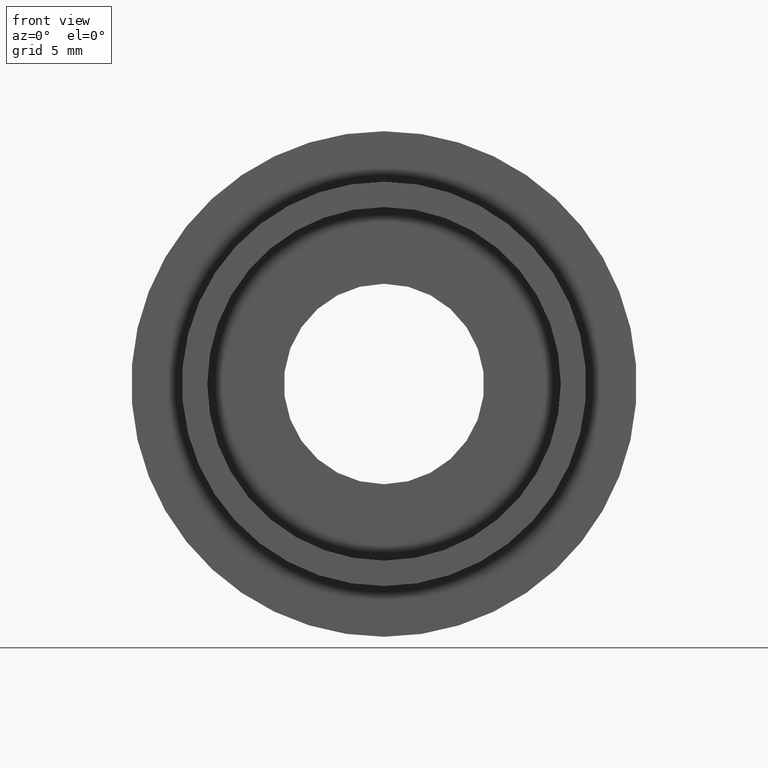
[diagram: clean part render]
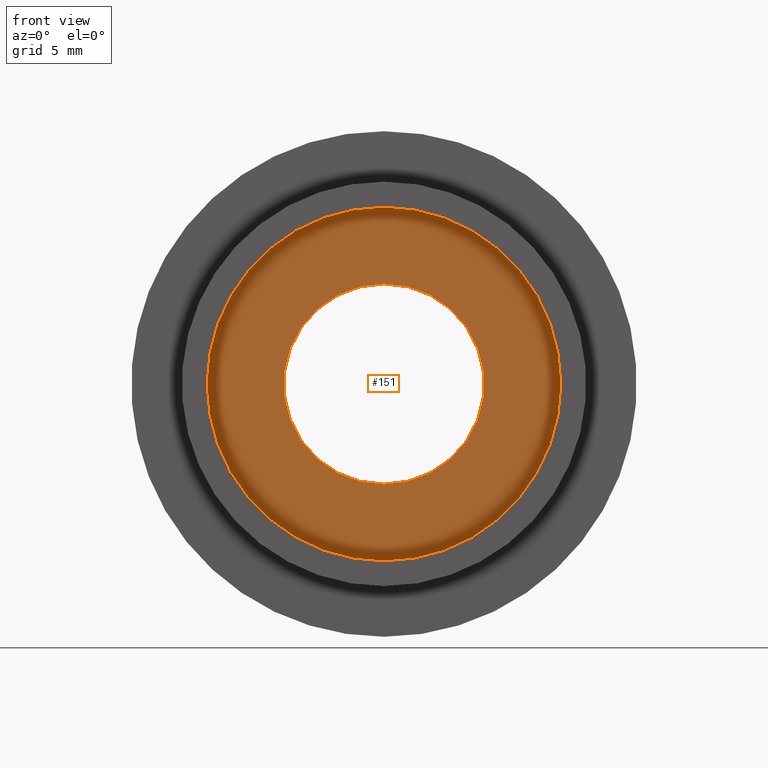
[diagram: same view with one face highlighted and labeled with its STEP entity id]
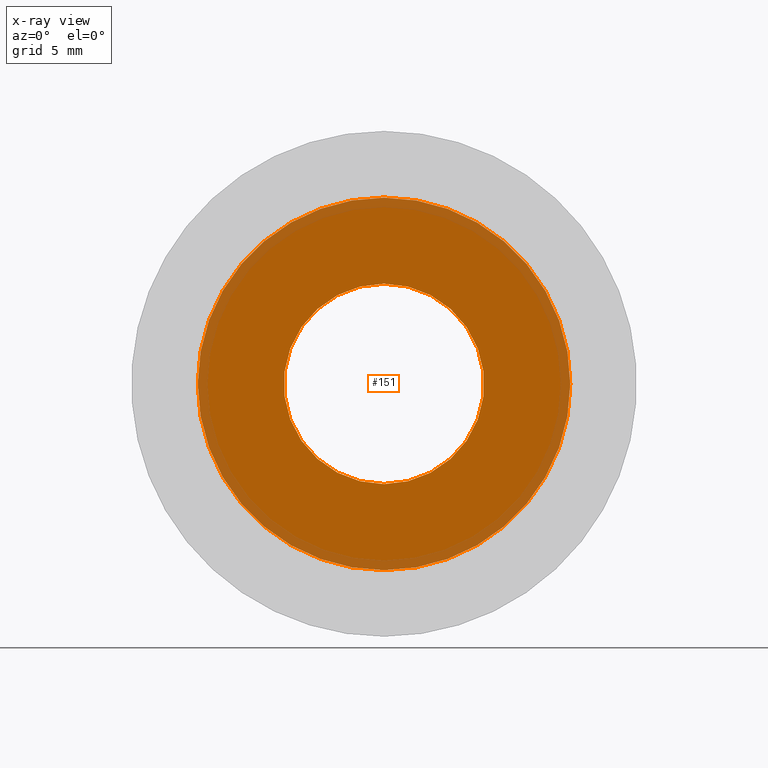
[diagram: x-ray of the same camera — body ghosted, the highlighted face saturated]
A machine part, front view. The second image highlights one B-rep face of the part: STEP entity #151.
The next image is the same camera in x-ray: the body ghosted, the highlighted face saturated — about 14% of this face is hidden behind the body in this view.
In plain terms, the highlighted planar face has unit normal (-0, 1, 0).
Its self-contained STEP definition (entity closure, byte-faithful):
#9 = CIRCLE ( 'NONE', #110, 6.295000000000001700 ) ;
#11 = VERTEX_POINT ( 'NONE', #174 ) ;
#15 = DIRECTION ( 'NONE',  ( 0.0000000000000000000, 0.0000000000000000000, 1.000000000000000000 ) ) ;
#32 = PLANE ( 'NONE',  #579 ) ;
#71 = EDGE_LOOP ( 'NONE', ( #492, #231 ) ) ;
#107 = EDGE_CURVE ( 'NONE', #292, #525, #9, .T. ) ;
#110 = AXIS2_PLACEMENT_3D ( 'NONE', #183, #469, #133 ) ;
#130 = DIRECTION ( 'NONE',  ( -0.0000000000000000000, 1.000000000000000000, -0.0000000000000000000 ) ) ;
#133 = DIRECTION ( 'NONE',  ( 0.0000000000000000000, 0.0000000000000000000, 1.000000000000000000 ) ) ;
#134 = ORIENTED_EDGE ( 'NONE', *, *, #555, .F. ) ;
#151 = ADVANCED_FACE ( 'NONE', ( #179, #391 ), #32, .F. ) ;
#174 = CARTESIAN_POINT ( 'NONE',  ( 0.0000000000000000000, 5.000000000000000900, 11.70000000000000100 ) ) ;
#179 = FACE_OUTER_BOUND ( 'NONE', #602, .T. ) ;
#183 = CARTESIAN_POINT ( 'NONE',  ( 0.0000000000000000000, 4.999999999999999100, 0.0000000000000000000 ) ) ;
#194 = ORIENTED_EDGE ( 'NONE', *, *, #586, .F. ) ;
#231 = ORIENTED_EDGE ( 'NONE', *, *, #568, .T. ) ;
#253 = CARTESIAN_POINT ( 'NONE',  ( 0.0000000000000000000, 4.999999999999999100, 6.295000000000001700 ) ) ;
#254 = CARTESIAN_POINT ( 'NONE',  ( 0.0000000000000000000, 5.000000000000000900, 0.0000000000000000000 ) ) ;
#271 = CARTESIAN_POINT ( 'NONE',  ( 11.70000000000000100, 4.999999999999999100, 0.0000000000000000000 ) ) ;
#292 = VERTEX_POINT ( 'NONE', #253 ) ;
#302 = CIRCLE ( 'NONE', #415, 6.295000000000001700 ) ;
#313 = AXIS2_PLACEMENT_3D ( 'NONE', #254, #130, #467 ) ;
#334 = CARTESIAN_POINT ( 'NONE',  ( 1.432836755002403300E-015, 5.000000000000000900, -11.70000000000000100 ) ) ;
#388 = VERTEX_POINT ( 'NONE', #334 ) ;
#391 = FACE_BOUND ( 'NONE', #71, .T. ) ;
#403 = CARTESIAN_POINT ( 'NONE',  ( 0.0000000000000000000, 4.999999999999999100, 0.0000000000000000000 ) ) ;
#415 = AXIS2_PLACEMENT_3D ( 'NONE', #403, #451, #15 ) ;
#451 = DIRECTION ( 'NONE',  ( -0.0000000000000000000, 1.000000000000000000, -0.0000000000000000000 ) ) ;
#467 = DIRECTION ( 'NONE',  ( 0.0000000000000000000, 0.0000000000000000000, 1.000000000000000000 ) ) ;
#469 = DIRECTION ( 'NONE',  ( -0.0000000000000000000, 1.000000000000000000, -0.0000000000000000000 ) ) ;
#480 = AXIS2_PLACEMENT_3D ( 'NONE', #573, #617, #576 ) ;
#492 = ORIENTED_EDGE ( 'NONE', *, *, #107, .T. ) ;
#506 = CIRCLE ( 'NONE', #313, 11.70000000000000100 ) ;
#521 = DIRECTION ( 'NONE',  ( 0.0000000000000000000, 0.0000000000000000000, 1.000000000000000000 ) ) ;
#525 = VERTEX_POINT ( 'NONE', #614 ) ;
#555 = EDGE_CURVE ( 'NONE', #388, #11, #506, .T. ) ;
#565 = DIRECTION ( 'NONE',  ( -0.0000000000000000000, 1.000000000000000000, 0.0000000000000000000 ) ) ;
#568 = EDGE_CURVE ( 'NONE', #525, #292, #302, .T. ) ;
#573 = CARTESIAN_POINT ( 'NONE',  ( 0.0000000000000000000, 5.000000000000000900, 0.0000000000000000000 ) ) ;
#576 = DIRECTION ( 'NONE',  ( 0.0000000000000000000, 0.0000000000000000000, 1.000000000000000000 ) ) ;
#579 = AXIS2_PLACEMENT_3D ( 'NONE', #271, #565, #521 ) ;
#586 = EDGE_CURVE ( 'NONE', #11, #388, #621, .T. ) ;
#602 = EDGE_LOOP ( 'NONE', ( #194, #134 ) ) ;
#614 = CARTESIAN_POINT ( 'NONE',  ( 7.709151600632590500E-016, 4.999999999999999100, -6.295000000000001700 ) ) ;
#617 = DIRECTION ( 'NONE',  ( -0.0000000000000000000, 1.000000000000000000, -0.0000000000000000000 ) ) ;
#621 = CIRCLE ( 'NONE', #480, 11.70000000000000100 ) ;